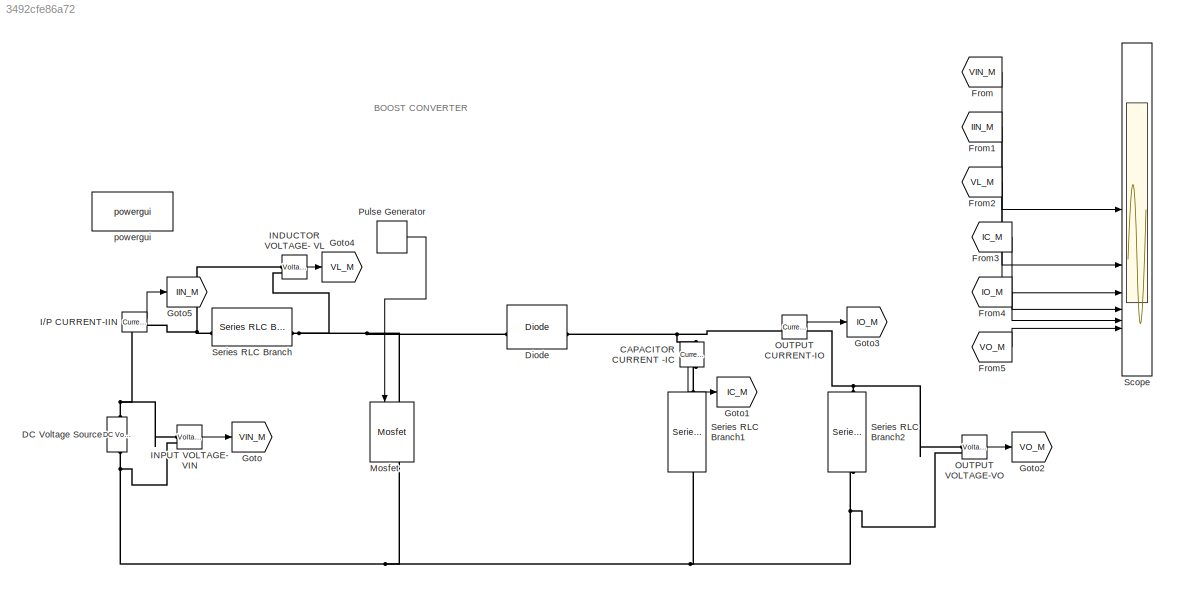
MODEL slx_3492cfe86a72
KIND model
CONFIG AbsTol = auto
CONFIG EnableMultiTasking = off
CONFIG FixedStep = auto
CONFIG MaxStep = auto
CONFIG MinStep = auto
CONFIG RelTol = 1e-3
CONFIG SampleTimeConstraint = Unconstrained
CONFIG SolverName = VariableStepAuto
CONFIG StartTime = 0.0
CONFIG StopTime = 0.01
BLOCK [Reference] CAPACITOR CURRENT -IC  REF=spsCurrentMeasurementLib/Current Measurement
  LibrarySourceBlock = sps_lib/Sensors and Measurements/Current Measurement
  NameLocation = left
  SourceBlock = spsCurrentMeasurementLib/Current Measurement
  SourceType = Current Measurement
  UserDataPersistent = on
BLOCK [Reference] DC Voltage Source  REF=spsDCVoltageSourceLib/DC Voltage Source
  LibrarySourceBlock = sps_lib/Sources/DC Voltage Source
  SourceBlock = spsDCVoltageSourceLib/DC Voltage Source
  SourceType = DC Voltage Source
BLOCK [Reference] Diode  REF=spsDiodeLib/Diode
  LibrarySourceBlock = sps_lib/Power Electronics/Diode
  SourceBlock = spsDiodeLib/Diode
  SourceType = Diode
BLOCK [From] From
  GotoTag = VIN_M
BLOCK [From] From1
  GotoTag = IIN_M
BLOCK [From] From2
  GotoTag = VL_M
BLOCK [From] From3
  GotoTag = IC_M
BLOCK [From] From4
  GotoTag = IO_M
BLOCK [From] From5
  GotoTag = VO_M
BLOCK [Goto] Goto
  GotoTag = VIN_M
BLOCK [Goto] Goto1
  GotoTag = IC_M
BLOCK [Goto] Goto2
  GotoTag = VO_M
BLOCK [Goto] Goto3
  GotoTag = IO_M
BLOCK [Goto] Goto4
  GotoTag = VL_M
BLOCK [Goto] Goto5
  GotoTag = IIN_M
BLOCK [Reference] I//P CURRENT-IIN  REF=spsCurrentMeasurementLib/Current Measurement
  LibrarySourceBlock = sps_lib/Sensors and Measurements/Current Measurement
  SourceBlock = spsCurrentMeasurementLib/Current Measurement
  SourceType = Current Measurement
  UserDataPersistent = on
BLOCK [Reference] INDUCTOR VOLTAGE- VL  REF=spsVoltageMeasurementLib/Voltage Measurement
  LibrarySourceBlock = sps_lib/Sensors and Measurements/Voltage Measurement
  SourceBlock = spsVoltageMeasurementLib/Voltage Measurement
  SourceType = Voltage Measurement
  UserDataPersistent = on
BLOCK [Reference] INPUT VOLTAGE-VIN  REF=spsVoltageMeasurementLib/Voltage Measurement
  LibrarySourceBlock = sps_lib/Sensors and Measurements/Voltage Measurement
  SourceBlock = spsVoltageMeasurementLib/Voltage Measurement
  SourceType = Voltage Measurement
  UserDataPersistent = on
BLOCK [Reference] Mosfet  REF=spsMosfetLib/Mosfet
  LibrarySourceBlock = sps_lib/Power Electronics/Mosfet
  NameLocation = left
  SourceBlock = spsMosfetLib/Mosfet
  SourceType = Mosfet
BLOCK [Reference] OUTPUT CURRENT-IO  REF=spsCurrentMeasurementLib/Current Measurement
  LibrarySourceBlock = sps_lib/Sensors and Measurements/Current Measurement
  SourceBlock = spsCurrentMeasurementLib/Current Measurement
  SourceType = Current Measurement
  UserDataPersistent = on
BLOCK [Reference] OUTPUT VOLTAGE-VO  REF=spsVoltageMeasurementLib/Voltage Measurement
  LibrarySourceBlock = sps_lib/Sensors and Measurements/Voltage Measurement
  SourceBlock = spsVoltageMeasurementLib/Voltage Measurement
  SourceType = Voltage Measurement
  UserDataPersistent = on
BLOCK [DiscretePulseGenerator] Pulse Generator
  Period = 10
  PulseType = Time based
  PulseWidth = 5
BLOCK [Scope] Scope
  Floating = off
  NumInputPorts = 6
  ScopeSpecificationString = Simulink.scopes.TimeScopeBlockCfg('CurrentConfiguration', extmgr.ConfigurationSet(extmgr.Configuration('Core','General UI',true),extmgr.Configuration('Core','Source UI',true),extmgr.Configuration('Sources','WiredSimulink',true),extmgr.Configuration('Visuals','Time Domain',true,'SerializedDisplays',{struct('MinYLimReal','14.00000','MaxYLimReal','34.00000','YLabelReal','','MinYLimMag','14.00000','Ma...<+4884ch>
BLOCK [Reference] Series RLC Branch  REF=spsSeriesRLCBranchLib/Series RLC Branch
  LibrarySourceBlock = sps_lib/Passives/Series RLC Branch
  SourceBlock = spsSeriesRLCBranchLib/Series RLC Branch
  SourceType = Series RLC Branch
BLOCK [Reference] Series RLC Branch1  REF=spsSeriesRLCBranchLib/Series RLC Branch
  LibrarySourceBlock = sps_lib/Passives/Series RLC Branch
  NameLocation = left
  SourceBlock = spsSeriesRLCBranchLib/Series RLC Branch
  SourceType = Series RLC Branch
BLOCK [Reference] Series RLC Branch2  REF=spsSeriesRLCBranchLib/Series RLC Branch
  LibrarySourceBlock = sps_lib/Passives/Series RLC Branch
  NameLocation = left
  SourceBlock = spsSeriesRLCBranchLib/Series RLC Branch
  SourceType = Series RLC Branch
BLOCK [Reference] powergui  REF=sps_lib/powergui
  Priority = 1
  SourceBlock = sps_lib/powergui
  SourceType = PSB option menu block
ANNOTATION (root): BOOST CONVERTER
LINE CAPACITOR CURRENT -IC:1 -> Goto1:1
LINE From1:1 -> Scope:2
LINE From2:1 -> Scope:3
LINE From3:1 -> Scope:4
LINE From4:1 -> Scope:5
LINE From5:1 -> Scope:6
LINE From:1 -> Scope:1
LINE I//P CURRENT-IIN:1 -> Goto5:1
LINE INDUCTOR VOLTAGE- VL:1 -> Goto4:1
LINE INPUT VOLTAGE-VIN:1 -> Goto:1
LINE OUTPUT CURRENT-IO:1 -> Goto3:1
LINE OUTPUT VOLTAGE-VO:1 -> Goto2:1
LINE Pulse Generator:1 -> Mosfet:1
PNET net1: CAPACITOR CURRENT -IC:LConn1 -- Diode:RConn1 -- OUTPUT CURRENT-IO:LConn1
PLINE CAPACITOR CURRENT -IC:RConn1 -- Series RLC Branch1:LConn1
PNET net2: DC Voltage Source:LConn1 -- INPUT VOLTAGE-VIN:LConn2 -- Mosfet:RConn1 -- OUTPUT VOLTAGE-VO:LConn2 -- Series RLC Branch1:RConn1 -- Series RLC Branch2:RConn1
PNET net3: DC Voltage Source:RConn1 -- I//P CURRENT-IIN:LConn1 -- INPUT VOLTAGE-VIN:LConn1
PNET net4: Diode:LConn1 -- INDUCTOR VOLTAGE- VL:LConn2 -- Mosfet:LConn1 -- Series RLC Branch:RConn1
PNET net5: I//P CURRENT-IIN:RConn1 -- INDUCTOR VOLTAGE- VL:LConn1 -- Series RLC Branch:LConn1
PNET net6: OUTPUT CURRENT-IO:RConn1 -- OUTPUT VOLTAGE-VO:LConn1 -- Series RLC Branch2:LConn1
note: PNET lines group multi-terminal physical nets as a canonical sorted terminal list (undirected conserving connections); 2-terminal nets keep the pairwise PLINE form
